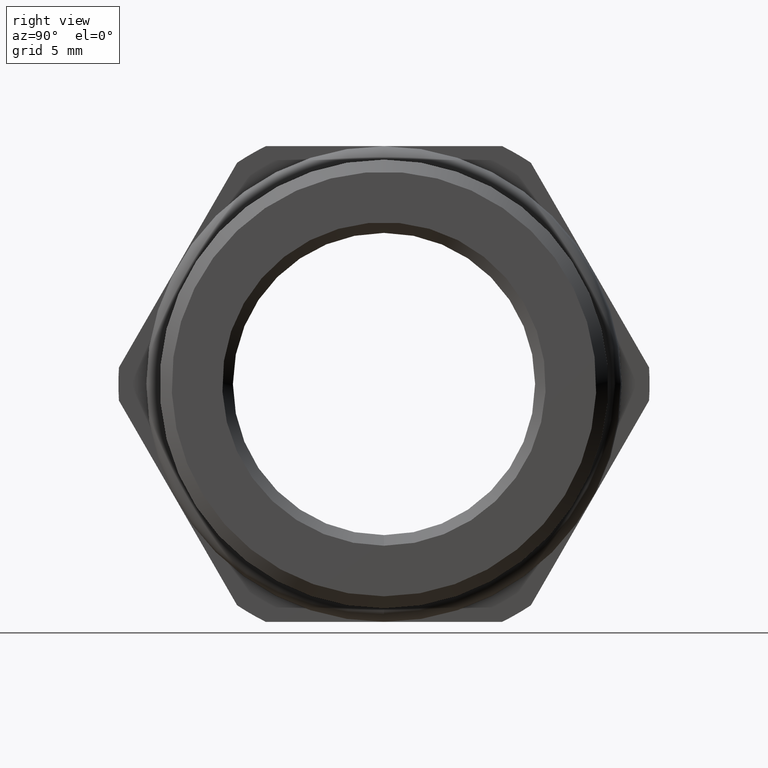
[diagram: clean part render]
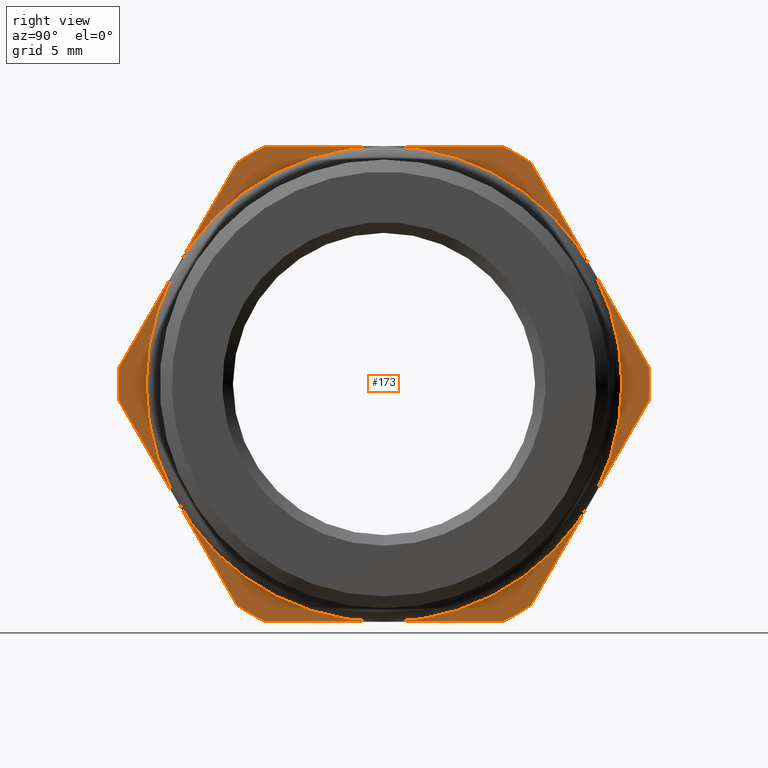
[diagram: same view with one face highlighted and labeled with its STEP entity id]
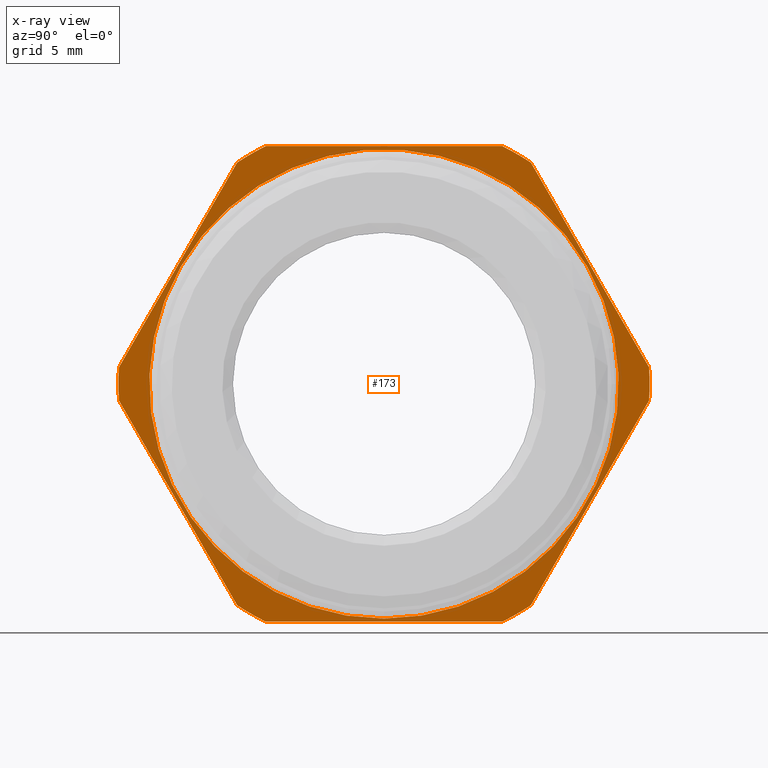
[diagram: x-ray of the same camera — body ghosted, the highlighted face saturated]
A machine part, right view. The second image highlights one B-rep face of the part: STEP entity #173.
The next image is the same camera in x-ray: the body ghosted, the highlighted face saturated — about 0% of this face is hidden behind the body in this view.
In plain terms, the highlighted planar face has unit normal (-1, 0, 0).
Its self-contained STEP definition (entity closure, byte-faithful):
#173 = ADVANCED_FACE( '', ( #211, #212 ), #213, .F. );
#211 = FACE_BOUND( '', #286, .T. );
#212 = FACE_OUTER_BOUND( '', #287, .T. );
#213 = PLANE( '', #288 );
#286 = EDGE_LOOP( '', ( #383 ) );
#287 = EDGE_LOOP( '', ( #384, #385, #386, #387, #388, #389, #390, #391, #392, #393, #394, #395 ) );
#288 = AXIS2_PLACEMENT_3D( '', #396, #397, #398 );
#383 = ORIENTED_EDGE( '', *, *, #579, .F. );
#384 = ORIENTED_EDGE( '', *, *, #580, .T. );
#385 = ORIENTED_EDGE( '', *, *, #581, .T. );
#386 = ORIENTED_EDGE( '', *, *, #582, .T. );
#387 = ORIENTED_EDGE( '', *, *, #574, .T. );
#388 = ORIENTED_EDGE( '', *, *, #583, .T. );
#389 = ORIENTED_EDGE( '', *, *, #584, .T. );
#390 = ORIENTED_EDGE( '', *, *, #585, .T. );
#391 = ORIENTED_EDGE( '', *, *, #586, .T. );
#392 = ORIENTED_EDGE( '', *, *, #587, .T. );
#393 = ORIENTED_EDGE( '', *, *, #588, .T. );
#394 = ORIENTED_EDGE( '', *, *, #589, .T. );
#395 = ORIENTED_EDGE( '', *, *, #590, .T. );
#396 = CARTESIAN_POINT( '', ( 3.30000000000000, 16.7500000000000, 0.000000000000000 ) );
#397 = DIRECTION( '', ( -1.00000000000000, 0.000000000000000, 0.000000000000000 ) );
#398 = DIRECTION( '', ( 0.000000000000000, 0.000000000000000, 1.00000000000000 ) );
#574 = EDGE_CURVE( '', #645, #642, #646, .T. );
#579 = EDGE_CURVE( '', #652, #652, #653, .T. );
#580 = EDGE_CURVE( '', #654, #655, #656, .T. );
#581 = EDGE_CURVE( '', #655, #657, #658, .T. );
#582 = EDGE_CURVE( '', #657, #645, #659, .T. );
#583 = EDGE_CURVE( '', #642, #660, #661, .T. );
#584 = EDGE_CURVE( '', #660, #662, #663, .T. );
#585 = EDGE_CURVE( '', #662, #664, #665, .T. );
#586 = EDGE_CURVE( '', #664, #666, #667, .T. );
#587 = EDGE_CURVE( '', #666, #668, #669, .T. );
#588 = EDGE_CURVE( '', #668, #670, #671, .T. );
#589 = EDGE_CURVE( '', #670, #672, #673, .T. );
#590 = EDGE_CURVE( '', #672, #654, #674, .T. );
#642 = VERTEX_POINT( '', #752 );
#645 = VERTEX_POINT( '', #756 );
#646 = LINE( '', #757, #758 );
#652 = VERTEX_POINT( '', #775 );
#653 = CIRCLE( '', #776, 14.7997979746447 );
#654 = VERTEX_POINT( '', #777 );
#655 = VERTEX_POINT( '', #778 );
#656 = CIRCLE( '', #779, 16.7500000000000 );
#657 = VERTEX_POINT( '', #780 );
#658 = LINE( '', #781, #782 );
#659 = CIRCLE( '', #783, 16.7500000000000 );
#660 = VERTEX_POINT( '', #784 );
#661 = CIRCLE( '', #785, 16.7500000000000 );
#662 = VERTEX_POINT( '', #786 );
#663 = LINE( '', #787, #788 );
#664 = VERTEX_POINT( '', #789 );
#665 = CIRCLE( '', #790, 16.7500000000000 );
#666 = VERTEX_POINT( '', #791 );
#667 = LINE( '', #792, #793 );
#668 = VERTEX_POINT( '', #794 );
#669 = CIRCLE( '', #795, 16.7500000000000 );
#670 = VERTEX_POINT( '', #796 );
#671 = LINE( '', #797, #798 );
#672 = VERTEX_POINT( '', #799 );
#673 = CIRCLE( '', #800, 16.7500000000000 );
#674 = LINE( '', #801, #802 );
#752 = CARTESIAN_POINT( '', ( 3.30000000000000, -7.45402575793778, 15.0000000000000 ) );
#756 = CARTESIAN_POINT( '', ( 3.30000000000000, 7.45402575793778, 15.0000000000000 ) );
#757 = CARTESIAN_POINT( '', ( 3.30000000000000, 16.7500000000000, 15.0000000000000 ) );
#758 = VECTOR( '', #926, 1000.00000000000 );
#775 = CARTESIAN_POINT( '', ( 3.30000000000000, 0.000000000000000, -14.7997979746447 ) );
#776 = AXIS2_PLACEMENT_3D( '', #931, #932, #933 );
#777 = CARTESIAN_POINT( '', ( 3.30000000000000, 16.7173939357355, -1.04462433316233 ) );
#778 = CARTESIAN_POINT( '', ( 3.30000000000000, 16.7173939357355, 1.04462433316233 ) );
#779 = AXIS2_PLACEMENT_3D( '', #934, #935, #936 );
#780 = CARTESIAN_POINT( '', ( 3.30000000000000, 9.26336817779770, 13.9553756668377 ) );
#781 = CARTESIAN_POINT( '', ( 3.30000000000000, 17.1778810567666, 0.247037243305327 ) );
#782 = VECTOR( '', #937, 1000.00000000000 );
#783 = AXIS2_PLACEMENT_3D( '', #938, #939, #940 );
#784 = CARTESIAN_POINT( '', ( 3.30000000000000, -9.26336817779770, 13.9553756668377 ) );
#785 = AXIS2_PLACEMENT_3D( '', #941, #942, #943 );
#786 = CARTESIAN_POINT( '', ( 3.30000000000000, -16.7173939357355, 1.04462433316234 ) );
#787 = CARTESIAN_POINT( '', ( 3.30000000000000, -8.80288105676659, 14.7529627566947 ) );
#788 = VECTOR( '', #944, 1000.00000000000 );
#789 = CARTESIAN_POINT( '', ( 3.30000000000000, -16.7173939357355, -1.04462433316234 ) );
#790 = AXIS2_PLACEMENT_3D( '', #945, #946, #947 );
#791 = CARTESIAN_POINT( '', ( 3.30000000000000, -9.26336817779770, -13.9553756668377 ) );
#792 = CARTESIAN_POINT( '', ( 3.30000000000000, -8.80288105676659, -14.7529627566947 ) );
#793 = VECTOR( '', #948, 1000.00000000000 );
#794 = CARTESIAN_POINT( '', ( 3.30000000000000, -7.45402575793778, -15.0000000000000 ) );
#795 = AXIS2_PLACEMENT_3D( '', #949, #950, #951 );
#796 = CARTESIAN_POINT( '', ( 3.30000000000000, 7.45402575793778, -15.0000000000000 ) );
#797 = CARTESIAN_POINT( '', ( 3.30000000000000, 16.7500000000000, -15.0000000000000 ) );
#798 = VECTOR( '', #952, 1000.00000000000 );
#799 = CARTESIAN_POINT( '', ( 3.30000000000000, 9.26336817779770, -13.9553756668377 ) );
#800 = AXIS2_PLACEMENT_3D( '', #953, #954, #955 );
#801 = CARTESIAN_POINT( '', ( 3.30000000000000, 17.1778810567666, -0.247037243305328 ) );
#802 = VECTOR( '', #956, 1000.00000000000 );
#926 = DIRECTION( '', ( 0.000000000000000, -1.00000000000000, 0.000000000000000 ) );
#931 = CARTESIAN_POINT( '', ( 3.30000000000000, 0.000000000000000, 0.000000000000000 ) );
#932 = DIRECTION( '', ( 1.00000000000000, 0.000000000000000, -0.000000000000000 ) );
#933 = DIRECTION( '', ( -0.000000000000000, 0.000000000000000, -1.00000000000000 ) );
#934 = CARTESIAN_POINT( '', ( 3.30000000000000, 0.000000000000000, 0.000000000000000 ) );
#935 = DIRECTION( '', ( 1.00000000000000, 0.000000000000000, -0.000000000000000 ) );
#936 = DIRECTION( '', ( -0.000000000000000, 0.000000000000000, -1.00000000000000 ) );
#937 = DIRECTION( '', ( 0.000000000000000, -0.500000000000000, 0.866025403784439 ) );
#938 = CARTESIAN_POINT( '', ( 3.30000000000000, 0.000000000000000, 0.000000000000000 ) );
#939 = DIRECTION( '', ( 1.00000000000000, 0.000000000000000, -0.000000000000000 ) );
#940 = DIRECTION( '', ( -0.000000000000000, 0.000000000000000, -1.00000000000000 ) );
#941 = CARTESIAN_POINT( '', ( 3.30000000000000, 0.000000000000000, 0.000000000000000 ) );
#942 = DIRECTION( '', ( 1.00000000000000, 0.000000000000000, -0.000000000000000 ) );
#943 = DIRECTION( '', ( -0.000000000000000, 0.000000000000000, -1.00000000000000 ) );
#944 = DIRECTION( '', ( 0.000000000000000, -0.500000000000000, -0.866025403784439 ) );
#945 = CARTESIAN_POINT( '', ( 3.30000000000000, 0.000000000000000, 0.000000000000000 ) );
#946 = DIRECTION( '', ( 1.00000000000000, 0.000000000000000, -0.000000000000000 ) );
#947 = DIRECTION( '', ( -0.000000000000000, 0.000000000000000, -1.00000000000000 ) );
#948 = DIRECTION( '', ( 0.000000000000000, 0.500000000000000, -0.866025403784439 ) );
#949 = CARTESIAN_POINT( '', ( 3.30000000000000, 0.000000000000000, 0.000000000000000 ) );
#950 = DIRECTION( '', ( 1.00000000000000, 0.000000000000000, -0.000000000000000 ) );
#951 = DIRECTION( '', ( -0.000000000000000, 0.000000000000000, -1.00000000000000 ) );
#952 = DIRECTION( '', ( 0.000000000000000, 1.00000000000000, 0.000000000000000 ) );
#953 = CARTESIAN_POINT( '', ( 3.30000000000000, 0.000000000000000, 0.000000000000000 ) );
#954 = DIRECTION( '', ( 1.00000000000000, 0.000000000000000, -0.000000000000000 ) );
#955 = DIRECTION( '', ( -0.000000000000000, 0.000000000000000, -1.00000000000000 ) );
#956 = DIRECTION( '', ( 0.000000000000000, 0.500000000000000, 0.866025403784439 ) );